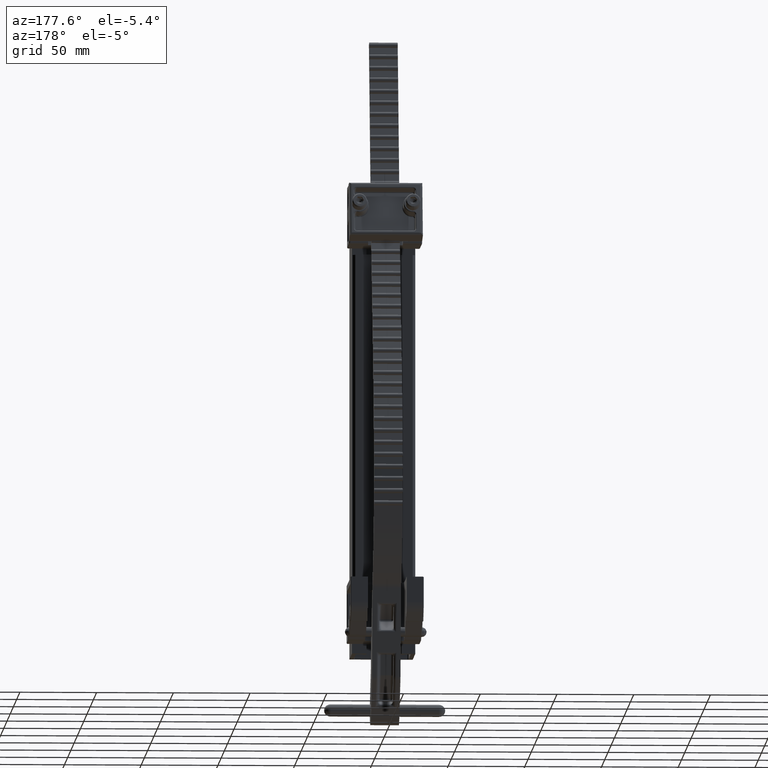
[diagram: clean part render]
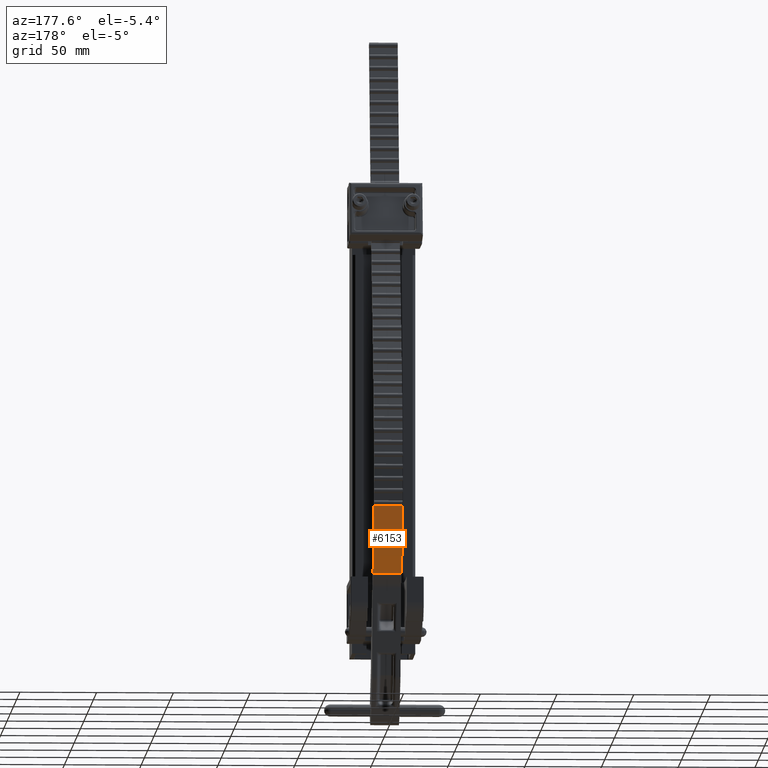
[diagram: same view with one face highlighted and labeled with its STEP entity id]
A machine part, auxiliary view. The second image highlights one B-rep face of the part: STEP entity #6153.
In plain terms, the highlighted face is a freeform B-spline surface patch.
Its self-contained STEP definition (entity closure, byte-faithful):
#381 = CARTESIAN_POINT ( 'NONE',  ( -3.703076168339256100, -0.6250000000000001100, 0.3649999999999999900 ) ) ;
#911 = CARTESIAN_POINT ( 'NONE',  ( -4.918692339800992700, -0.7820699130692939600, 0.3649999999999999900 ) ) ;
#1584 = FACE_OUTER_BOUND ( 'NONE', #16265, .T. ) ;
#4760 = VERTEX_POINT ( 'NONE', #23898 ) ;
#5159 = CARTESIAN_POINT ( 'NONE',  ( -3.703076168339256100, -0.6250000000000001100, -0.3649999999999999900 ) ) ;
#5311 = CARTESIAN_POINT ( 'NONE',  ( -4.334850543584789900, -0.6249999999999998900, -0.3649999999999999900 ) ) ;
#6153 = ADVANCED_FACE ( 'NONE', ( #1584 ), #19396, .F. ) ;
#6694 = VERTEX_POINT ( 'NONE', #35076 ) ;
#8634 = CARTESIAN_POINT ( 'NONE',  ( -4.334850543453427500, -0.6249999999999998900, -0.3649999999999999900 ) ) ;
#11943 = CARTESIAN_POINT ( 'NONE',  ( -3.703076168339256100, -0.6250000000000001100, 0.3649999999999999900 ) ) ;
#12082 = CARTESIAN_POINT ( 'NONE',  ( -4.918692339558200300, -0.7820699130039764400, -0.3649999999999999900 ) ) ;
#12238 = CARTESIAN_POINT ( 'NONE',  ( -5.459624250631037500, -1.048495024026079300, -0.3649999999999999900 ) ) ;
#13882 = VERTEX_POINT ( 'NONE', #18932 ) ;
#14391 = CARTESIAN_POINT ( 'NONE',  ( -3.703076168339256100, -0.6250000000000001100, 0.3649999999999999900 ) ) ;
#15625 = CARTESIAN_POINT ( 'NONE',  ( -5.459624250293721600, -1.048495023859940900, -0.3649999999999999900 ) ) ;
#16265 = EDGE_LOOP ( 'NONE', ( #43252, #22304, #29122, #22289 ) ) ;
#17207 = LINE ( 'NONE', #381, #43776 ) ;
#17886 = CARTESIAN_POINT ( 'NONE',  ( -4.334850543584789900, -0.6249999999999998900, 0.3649999999999999900 ) ) ;
#18338 = EDGE_CURVE ( 'NONE', #33947, #6694, #31699, .T. ) ;
#18932 = CARTESIAN_POINT ( 'NONE',  ( -3.703076168339256100, -0.6250000000000001100, -0.3649999999999999900 ) ) ;
#19396 = B_SPLINE_SURFACE_WITH_KNOTS ( 'NONE', 3, 1, ( 
 ( #11943, #5159 ),
 ( #29411, #8634 ),
 ( #32908, #12082 ),
 ( #36384, #15625 ) ),
 .UNSPECIFIED., .F., .F., .F.,
 ( 4, 4 ),
 ( 2, 2 ),
 ( 0.0000000000000000000, 0.1957811571432745400 ),
 ( 0.0000000000000000000, 1.000000000000000000 ),
 .UNSPECIFIED. ) ;
#21147 = DIRECTION ( 'NONE',  ( -0.0000000000000000000, -0.0000000000000000000, -1.000000000000000000 ) ) ;
#22289 = ORIENTED_EDGE ( 'NONE', *, *, #32322, .T. ) ;
#22304 = ORIENTED_EDGE ( 'NONE', *, *, #40142, .T. ) ;
#22617 = CARTESIAN_POINT ( 'NONE',  ( -3.703076168339256100, -0.6250000000000001100, -0.3649999999999999900 ) ) ;
#23898 = CARTESIAN_POINT ( 'NONE',  ( -5.459624250631037500, -1.048495024026079300, -0.3649999999999999900 ) ) ;
#25158 = CARTESIAN_POINT ( 'NONE',  ( -5.459624250631037500, -1.048495024026079300, 0.3649999999999999900 ) ) ;
#29122 = ORIENTED_EDGE ( 'NONE', *, *, #18338, .F. ) ;
#29411 = CARTESIAN_POINT ( 'NONE',  ( -4.334850543453427500, -0.6249999999999998900, 0.3649999999999999900 ) ) ;
#30001 = CARTESIAN_POINT ( 'NONE',  ( -5.459624250630975300, -1.048495024026047600, 0.3649999999999999900 ) ) ;
#30970 = VECTOR ( 'NONE', #33505, 39.37007874015748100 ) ;
#31699 = B_SPLINE_CURVE_WITH_KNOTS ( 'NONE', 3,
 ( #14391, #17886, #911, #25158 ),
 .UNSPECIFIED., .F., .F.,
 ( 4, 4 ),
 ( 0.0000000000000000000, 0.1957811571839823100 ),
 .UNSPECIFIED. ) ;
#32069 = LINE ( 'NONE', #30001, #30970 ) ;
#32322 = EDGE_CURVE ( 'NONE', #33947, #13882, #17207, .T. ) ;
#32908 = CARTESIAN_POINT ( 'NONE',  ( -4.918692339558200300, -0.7820699130039764400, 0.3649999999999999900 ) ) ;
#33052 = CARTESIAN_POINT ( 'NONE',  ( -4.918692339800992700, -0.7820699130692939600, -0.3649999999999999900 ) ) ;
#33505 = DIRECTION ( 'NONE',  ( 0.0000000000000000000, 0.0000000000000000000, 1.000000000000000000 ) ) ;
#33947 = VERTEX_POINT ( 'NONE', #42974 ) ;
#35076 = CARTESIAN_POINT ( 'NONE',  ( -5.459624250631037500, -1.048495024026079300, 0.3649999999999999900 ) ) ;
#36384 = CARTESIAN_POINT ( 'NONE',  ( -5.459624250293721600, -1.048495023859940900, 0.3649999999999999900 ) ) ;
#40080 = EDGE_CURVE ( 'NONE', #13882, #4760, #40514, .T. ) ;
#40142 = EDGE_CURVE ( 'NONE', #4760, #6694, #32069, .T. ) ;
#40514 = B_SPLINE_CURVE_WITH_KNOTS ( 'NONE', 3,
 ( #22617, #5311, #33052, #12238 ),
 .UNSPECIFIED., .F., .F.,
 ( 4, 4 ),
 ( 0.0000000000000000000, 0.1957811571839823100 ),
 .UNSPECIFIED. ) ;
#42974 = CARTESIAN_POINT ( 'NONE',  ( -3.703076168339256100, -0.6250000000000001100, 0.3649999999999999900 ) ) ;
#43252 = ORIENTED_EDGE ( 'NONE', *, *, #40080, .T. ) ;
#43776 = VECTOR ( 'NONE', #21147, 39.37007874015748100 ) ;